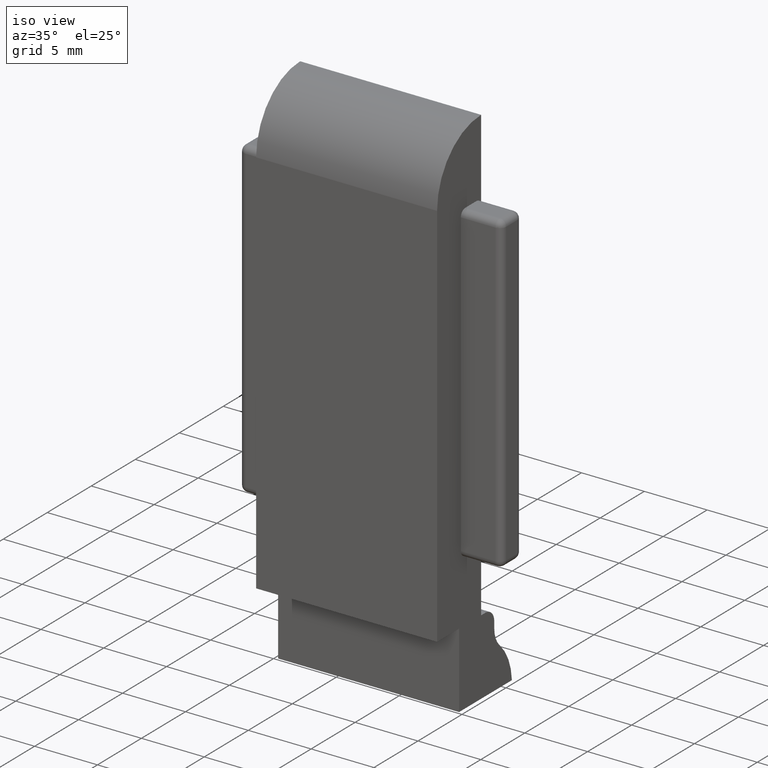
[diagram: clean part render]
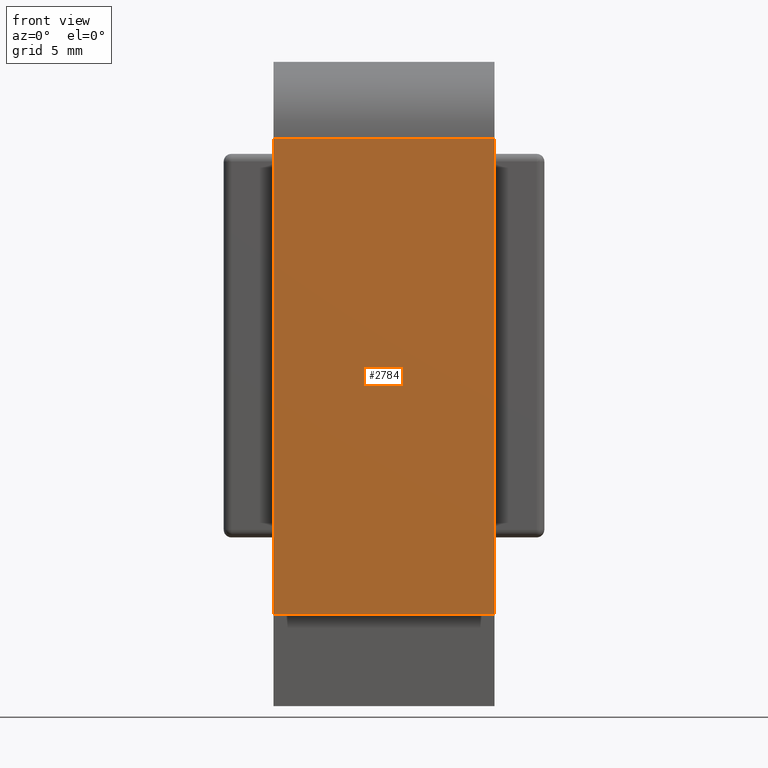
[diagram: tour spotlight — one face highlighted and labeled with its STEP entity id]
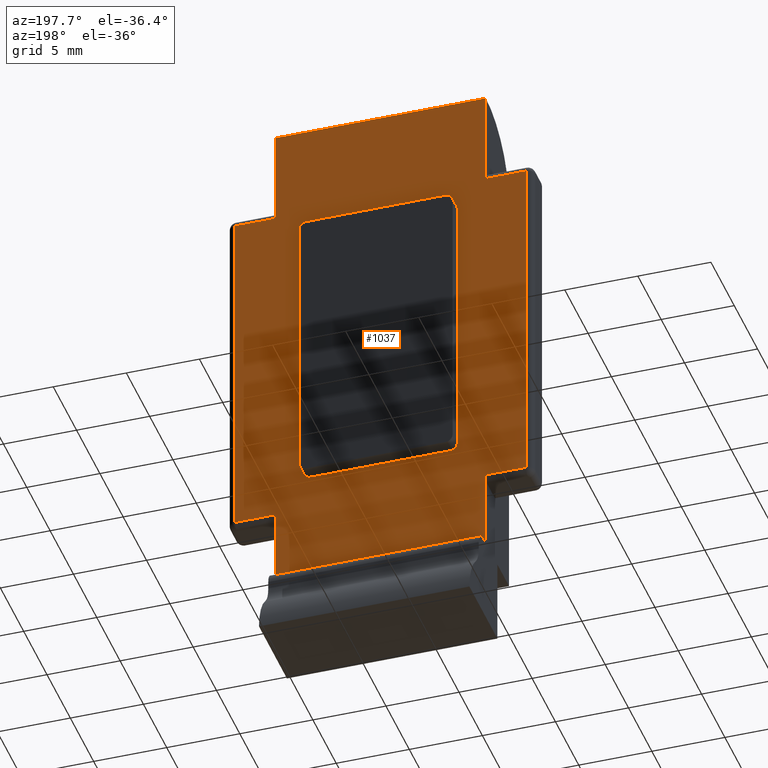
[diagram: tour spotlight — one face highlighted and labeled with its STEP entity id]
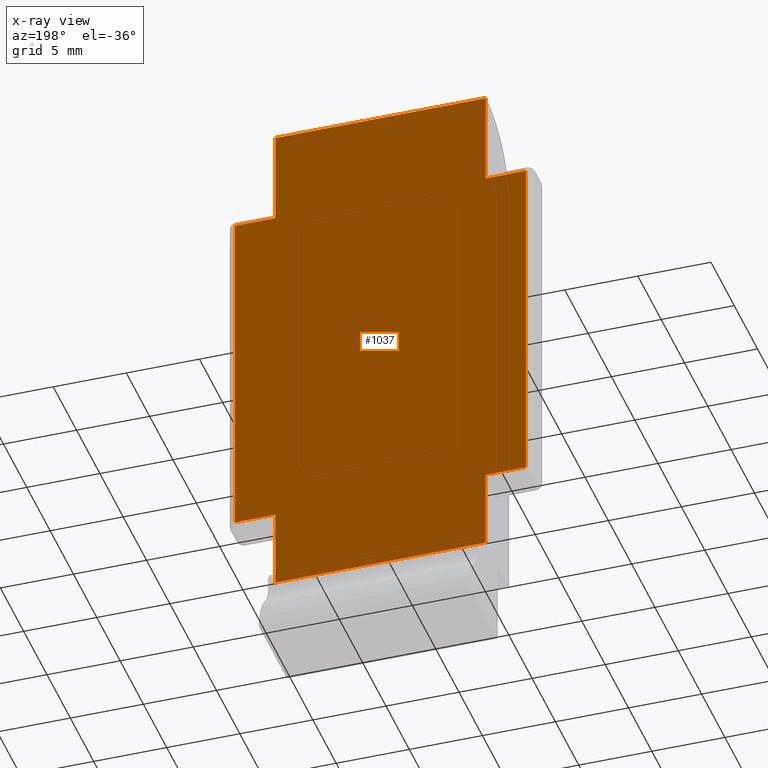
[diagram: x-ray of the same camera — body ghosted, this tour face saturated]
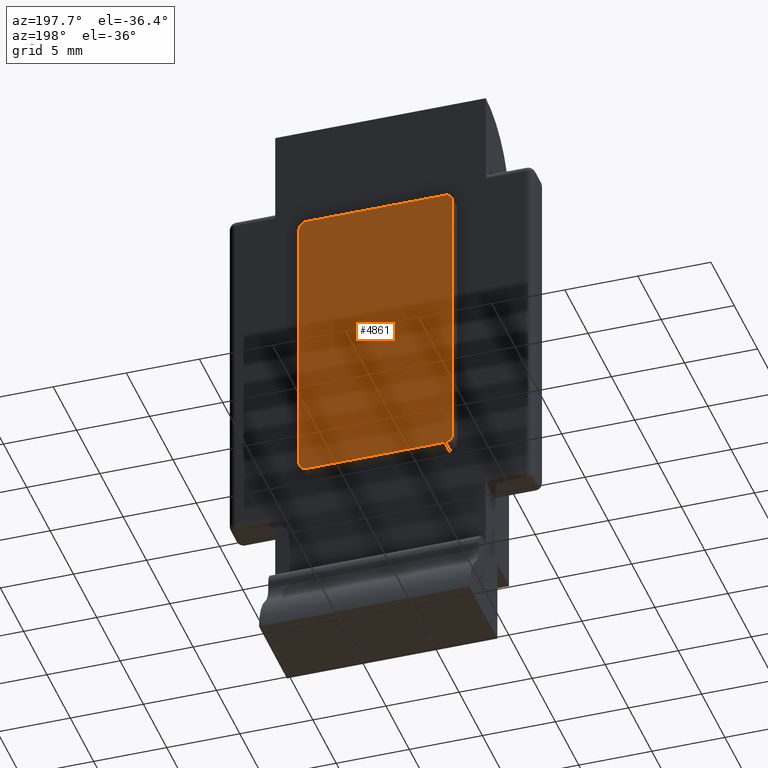
[diagram: tour spotlight — one face highlighted and labeled with its STEP entity id]
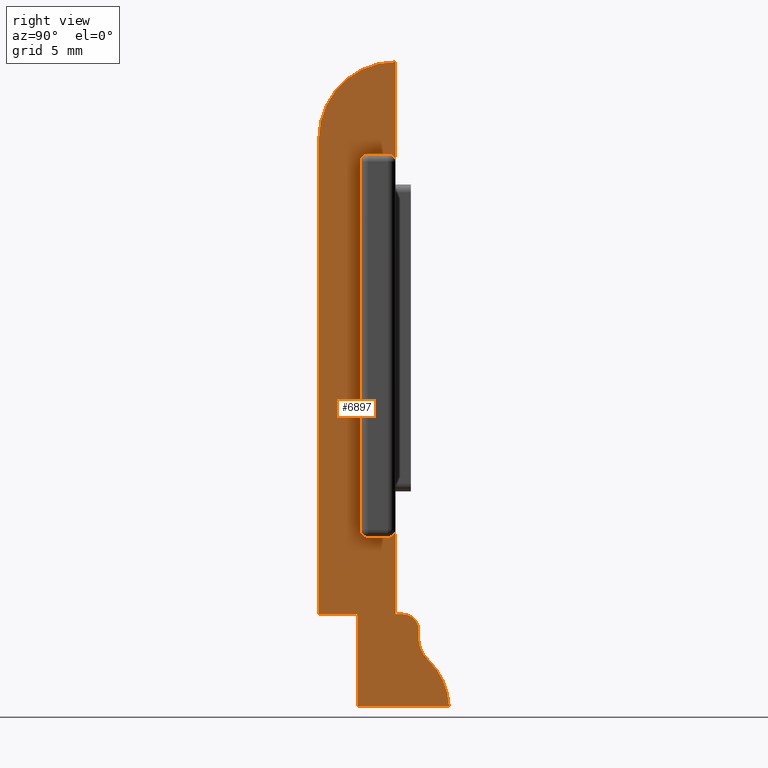
[diagram: tour spotlight — one face highlighted and labeled with its STEP entity id]
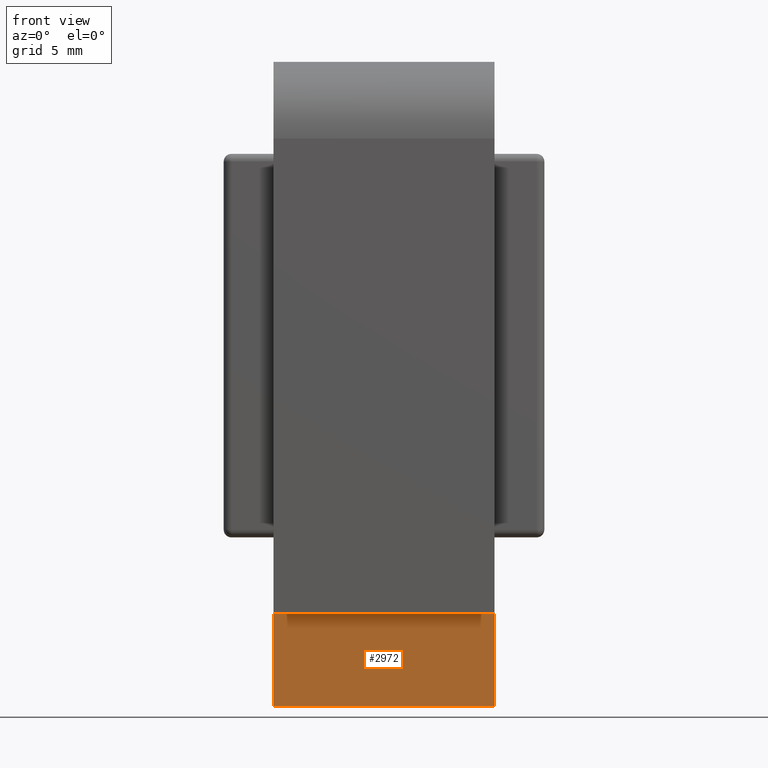
[diagram: tour spotlight — one face highlighted and labeled with its STEP entity id]
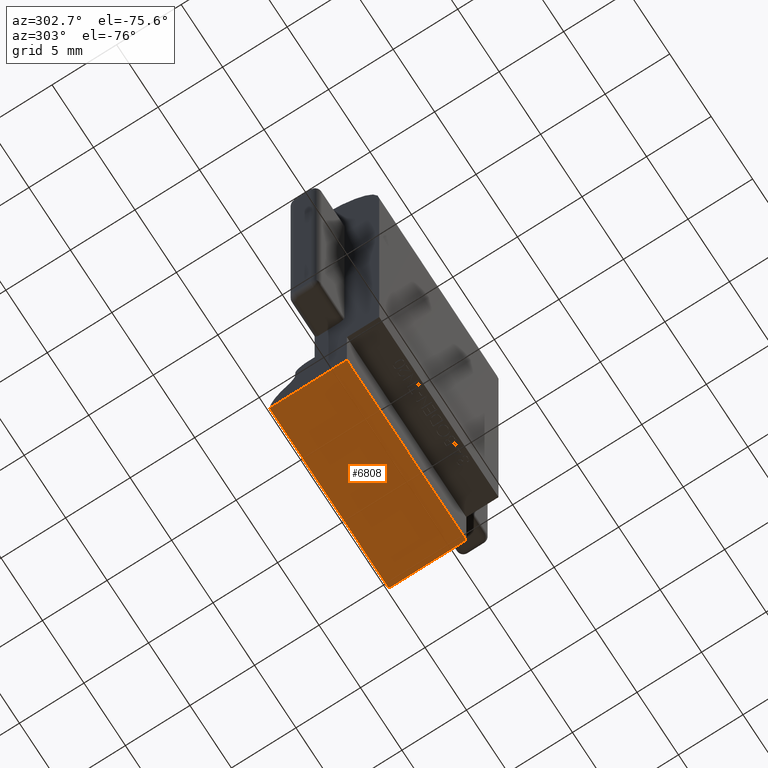
[diagram: tour spotlight — one face highlighted and labeled with its STEP entity id]
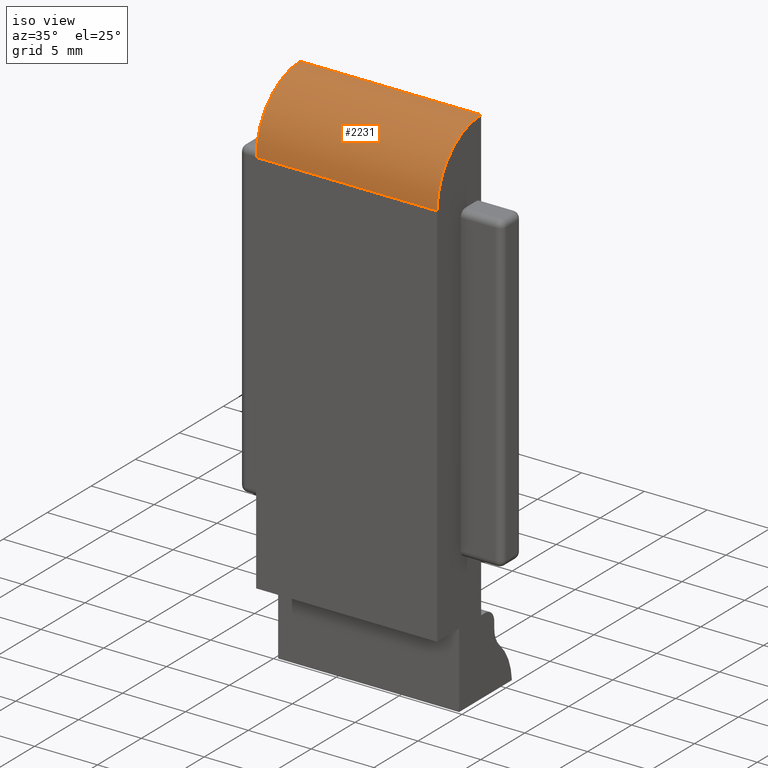
[diagram: tour spotlight — one face highlighted and labeled with its STEP entity id]
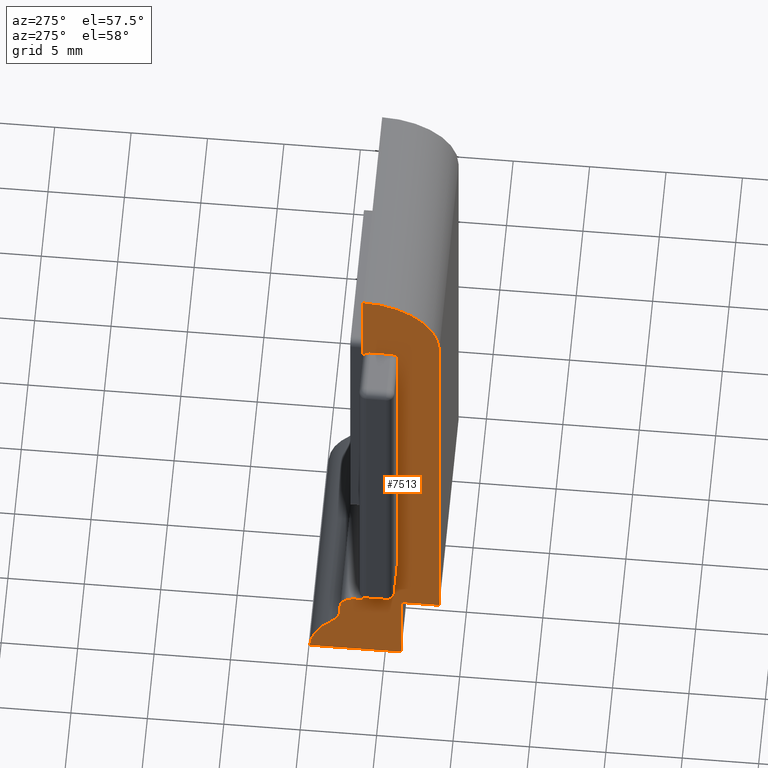
[diagram: tour spotlight — one face highlighted and labeled with its STEP entity id]
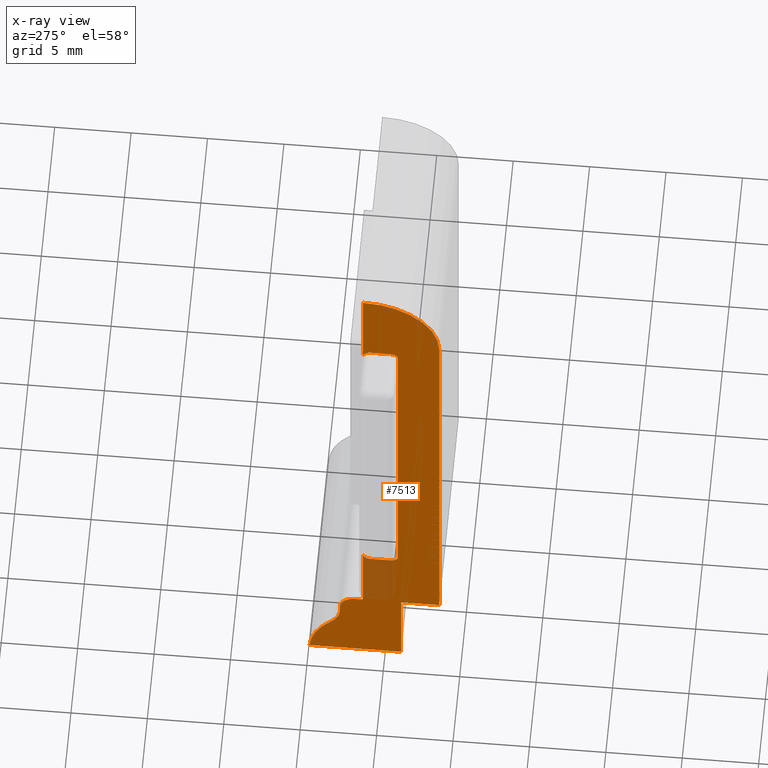
[diagram: x-ray of the same camera — body ghosted, this tour face saturated]
A machine part: a face-by-face anatomy tour. The part has 212 B-rep faces; the first image is the clean iso view, then the 8 largest visible faces are spotlighted one at a time (largest first), each with its STEP entity span.

Face 1 — front view, entity #2784. In plain terms, the highlighted planar face has unit normal (0, 1, 0).
Definition (entity closure, byte-faithful):
#141 = EDGE_CURVE ( 'NONE', #1060, #3666, #2911, .T. ) ;
#450 = EDGE_CURVE ( 'NONE', #2165, #1060, #7198, .T. ) ;
#1060 = VERTEX_POINT ( 'NONE', #4260 ) ;
#2114 = CARTESIAN_POINT ( 'NONE',  ( 0.0000000000000000000, -5.000000000000004400, 0.0000000000000000000 ) ) ;
#2165 = VERTEX_POINT ( 'NONE', #7008 ) ;
#2180 = VECTOR ( 'NONE', #7752, 1000.000000000000000 ) ;
#2286 = VECTOR ( 'NONE', #2686, 1000.000000000000000 ) ;
#2485 = VECTOR ( 'NONE', #4102, 1000.000000000000000 ) ;
#2528 = VECTOR ( 'NONE', #6272, 1000.000000000000000 ) ;
#2686 = DIRECTION ( 'NONE',  ( 0.0000000000000000000, 0.0000000000000000000, -1.000000000000000000 ) ) ;
#2772 = EDGE_CURVE ( 'NONE', #6245, #3666, #9351, .T. ) ;
#2784 = ADVANCED_FACE ( 'NONE', ( #7319 ), #3947, .F. ) ;
#2911 = LINE ( 'NONE', #8973, #2180 ) ;
#3173 = DIRECTION ( 'NONE',  ( -0.0000000000000000000, 1.000000000000000000, 0.0000000000000000000 ) ) ;
#3272 = CARTESIAN_POINT ( 'NONE',  ( 0.0000000000000000000, -5.000000000000004400, 30.99999999999999300 ) ) ;
#3666 = VERTEX_POINT ( 'NONE', #2114 ) ;
#3940 = EDGE_LOOP ( 'NONE', ( #7931, #4463, #7706, #9084 ) ) ;
#3947 = PLANE ( 'NONE',  #9876 ) ;
#4017 = DIRECTION ( 'NONE',  ( 0.0000000000000000000, -0.0000000000000000000, 1.000000000000000000 ) ) ;
#4102 = DIRECTION ( 'NONE',  ( -1.000000000000000000, -0.0000000000000000000, -0.0000000000000000000 ) ) ;
#4139 = CARTESIAN_POINT ( 'NONE',  ( 14.40000000000000000, -5.000000000000002700, 30.99999999999999300 ) ) ;
#4260 = CARTESIAN_POINT ( 'NONE',  ( 14.40000000000000000, -5.000000000000004400, 0.0000000000000000000 ) ) ;
#4463 = ORIENTED_EDGE ( 'NONE', *, *, #141, .F. ) ;
#4617 = EDGE_CURVE ( 'NONE', #2165, #6245, #7278, .T. ) ;
#6245 = VERTEX_POINT ( 'NONE', #7771 ) ;
#6272 = DIRECTION ( 'NONE',  ( 0.0000000000000000000, 0.0000000000000000000, -1.000000000000000000 ) ) ;
#7008 = CARTESIAN_POINT ( 'NONE',  ( 14.40000000000000000, -5.000000000000002700, 30.99999999999999300 ) ) ;
#7198 = LINE ( 'NONE', #7948, #2286 ) ;
#7278 = LINE ( 'NONE', #4139, #2485 ) ;
#7319 = FACE_OUTER_BOUND ( 'NONE', #3940, .T. ) ;
#7706 = ORIENTED_EDGE ( 'NONE', *, *, #450, .F. ) ;
#7752 = DIRECTION ( 'NONE',  ( -1.000000000000000000, -0.0000000000000000000, -0.0000000000000000000 ) ) ;
#7771 = CARTESIAN_POINT ( 'NONE',  ( 0.0000000000000000000, -5.000000000000002700, 30.99999999999999300 ) ) ;
#7931 = ORIENTED_EDGE ( 'NONE', *, *, #2772, .T. ) ;
#7948 = CARTESIAN_POINT ( 'NONE',  ( 14.40000000000000000, -5.000000000000004400, 30.99999999999999300 ) ) ;
#8973 = CARTESIAN_POINT ( 'NONE',  ( 14.40000000000000000, -5.000000000000004400, 0.0000000000000000000 ) ) ;
#9084 = ORIENTED_EDGE ( 'NONE', *, *, #4617, .T. ) ;
#9351 = LINE ( 'NONE', #3272, #2528 ) ;
#9374 = CARTESIAN_POINT ( 'NONE',  ( 14.40000000000000000, -5.000000000000004400, 30.99999999999999300 ) ) ;
#9876 = AXIS2_PLACEMENT_3D ( 'NONE', #9374, #3173, #4017 ) ;

Face 2 — auxiliary view, entity #1037. An x-ray twin of the same camera follows (body ghosted, this face saturated) — the face is partly hidden behind the body. In plain terms, the highlighted planar face has unit normal (0, -1, -0).
Definition (entity closure, byte-faithful):
#214 = ORIENTED_EDGE ( 'NONE', *, *, #7647, .T. ) ;
#257 = CARTESIAN_POINT ( 'NONE',  ( 17.14999999999999900, -6.505213034913026600E-016, 5.499999999999998200 ) ) ;
#286 = LINE ( 'NONE', #6440, #6040 ) ;
#641 = VECTOR ( 'NONE', #1742, 1000.000000000000000 ) ;
#711 = EDGE_LOOP ( 'NONE', ( #2545, #5575, #5744, #4779, #7068, #7147, #2842, #214, #2534, #2895, #5609, #5158 ) ) ;
#791 = EDGE_CURVE ( 'NONE', #7744, #7770, #1812, .T. ) ;
#875 = LINE ( 'NONE', #6339, #641 ) ;
#922 = CARTESIAN_POINT ( 'NONE',  ( 14.40000000000000000, -4.336808689942017700E-015, 36.00000000000000000 ) ) ;
#978 = CARTESIAN_POINT ( 'NONE',  ( 14.40000000000000000, -4.336808689942017700E-015, 36.00000000000000000 ) ) ;
#1037 = ADVANCED_FACE ( 'NONE', ( #9631 ), #2769, .F. ) ;
#1125 = VERTEX_POINT ( 'NONE', #5951 ) ;
#1129 = EDGE_CURVE ( 'NONE', #4273, #9597, #2794, .T. ) ;
#1144 = CARTESIAN_POINT ( 'NONE',  ( 14.40000000000000000, -4.336808689942017700E-015, 36.00000000000000000 ) ) ;
#1294 = VECTOR ( 'NONE', #6203, 1000.000000000000000 ) ;
#1476 = VECTOR ( 'NONE', #4395, 1000.000000000000000 ) ;
#1489 = VECTOR ( 'NONE', #4710, 1000.000000000000000 ) ;
#1532 = CARTESIAN_POINT ( 'NONE',  ( 14.40000000000000000, 0.0000000000000000000, 0.0000000000000000000 ) ) ;
#1634 = EDGE_CURVE ( 'NONE', #5099, #4111, #875, .T. ) ;
#1707 = CARTESIAN_POINT ( 'NONE',  ( -2.750000000000000900, -3.686287386450715100E-015, 30.00000000000000000 ) ) ;
#1742 = DIRECTION ( 'NONE',  ( -0.0000000000000000000, -1.224646799147353200E-016, 1.000000000000000000 ) ) ;
#1812 = LINE ( 'NONE', #6222, #9725 ) ;
#2128 = CARTESIAN_POINT ( 'NONE',  ( 0.0000000000000000000, -6.505213034913026600E-016, 5.499999999999998200 ) ) ;
#2312 = CARTESIAN_POINT ( 'NONE',  ( 14.40000000000000000, -4.336808689942017700E-015, 36.00000000000000000 ) ) ;
#2452 = CARTESIAN_POINT ( 'NONE',  ( 14.40000000000000000, -6.505213034913026600E-016, 5.499999999999998200 ) ) ;
#2458 = EDGE_CURVE ( 'NONE', #2689, #1125, #3152, .T. ) ;
#2462 = VECTOR ( 'NONE', #4936, 1000.000000000000000 ) ;
#2474 = VERTEX_POINT ( 'NONE', #6818 ) ;
#2534 = ORIENTED_EDGE ( 'NONE', *, *, #8322, .T. ) ;
#2545 = ORIENTED_EDGE ( 'NONE', *, *, #1634, .T. ) ;
#2663 = VECTOR ( 'NONE', #6845, 1000.000000000000000 ) ;
#2689 = VERTEX_POINT ( 'NONE', #3417 ) ;
#2769 = PLANE ( 'NONE',  #6798 ) ;
#2794 = LINE ( 'NONE', #9757, #1476 ) ;
#2842 = ORIENTED_EDGE ( 'NONE', *, *, #1129, .F. ) ;
#2895 = ORIENTED_EDGE ( 'NONE', *, *, #8244, .T. ) ;
#3099 = CARTESIAN_POINT ( 'NONE',  ( 14.40000000000000000, -3.686287386450715100E-015, 29.50000000000000000 ) ) ;
#3152 = LINE ( 'NONE', #2312, #2663 ) ;
#3218 = LINE ( 'NONE', #1532, #8094 ) ;
#3365 = CARTESIAN_POINT ( 'NONE',  ( 14.40000000000000000, -6.505213034913026600E-016, 5.499999999999998200 ) ) ;
#3417 = CARTESIAN_POINT ( 'NONE',  ( 14.40000000000000000, 0.0000000000000000000, 0.0000000000000000000 ) ) ;
#3602 = VERTEX_POINT ( 'NONE', #257 ) ;
#3607 = DIRECTION ( 'NONE',  ( -0.0000000000000000000, 1.224646799147353000E-016, -1.000000000000000000 ) ) ;
#3700 = LINE ( 'NONE', #1707, #5126 ) ;
#3705 = VECTOR ( 'NONE', #8839, 1000.000000000000000 ) ;
#3938 = CARTESIAN_POINT ( 'NONE',  ( 0.0000000000000000000, -4.336808689942017700E-015, 36.00000000000000000 ) ) ;
#4103 = DIRECTION ( 'NONE',  ( -0.0000000000000000000, -1.224646799147353000E-016, 1.000000000000000000 ) ) ;
#4111 = VERTEX_POINT ( 'NONE', #2128 ) ;
#4273 = VERTEX_POINT ( 'NONE', #4587 ) ;
#4395 = DIRECTION ( 'NONE',  ( -0.0000000000000000000, -1.224646799147353200E-016, 1.000000000000000000 ) ) ;
#4587 = CARTESIAN_POINT ( 'NONE',  ( 14.40000000000000000, -3.686287386450715100E-015, 29.50000000000000000 ) ) ;
#4710 = DIRECTION ( 'NONE',  ( -1.000000000000000000, -0.0000000000000000000, -0.0000000000000000000 ) ) ;
#4779 = ORIENTED_EDGE ( 'NONE', *, *, #6004, .T. ) ;
#4936 = DIRECTION ( 'NONE',  ( -1.000000000000000000, 0.0000000000000000000, 0.0000000000000000000 ) ) ;
#5099 = VERTEX_POINT ( 'NONE', #9566 ) ;
#5126 = VECTOR ( 'NONE', #4103, 1000.000000000000000 ) ;
#5158 = ORIENTED_EDGE ( 'NONE', *, *, #8620, .T. ) ;
#5575 = ORIENTED_EDGE ( 'NONE', *, *, #6987, .T. ) ;
#5609 = ORIENTED_EDGE ( 'NONE', *, *, #2458, .F. ) ;
#5744 = ORIENTED_EDGE ( 'NONE', *, *, #6034, .T. ) ;
#5841 = LINE ( 'NONE', #3099, #1294 ) ;
#5951 = CARTESIAN_POINT ( 'NONE',  ( 14.40000000000000000, -6.505213034913026600E-016, 5.499999999999998200 ) ) ;
#6004 = EDGE_CURVE ( 'NONE', #7296, #7744, #5841, .T. ) ;
#6034 = EDGE_CURVE ( 'NONE', #2474, #7296, #3700, .T. ) ;
#6040 = VECTOR ( 'NONE', #3607, 1000.000000000000000 ) ;
#6105 = CARTESIAN_POINT ( 'NONE',  ( 17.14999999999999900, -3.686287386450715100E-015, 29.50000000000000000 ) ) ;
#6163 = DIRECTION ( 'NONE',  ( -1.000000000000000000, -0.0000000000000000000, -0.0000000000000000000 ) ) ;
#6203 = DIRECTION ( 'NONE',  ( 1.000000000000000000, 0.0000000000000000000, 0.0000000000000000000 ) ) ;
#6222 = CARTESIAN_POINT ( 'NONE',  ( 0.0000000000000000000, -4.336808689942017700E-015, 36.00000000000000000 ) ) ;
#6339 = CARTESIAN_POINT ( 'NONE',  ( 0.0000000000000000000, -4.336808689942017700E-015, 36.00000000000000000 ) ) ;
#6440 = CARTESIAN_POINT ( 'NONE',  ( 17.14999999999999900, -4.336808689942017700E-015, 36.00000000000000000 ) ) ;
#6625 = DIRECTION ( 'NONE',  ( 0.0000000000000000000, -1.000000000000000000, -1.224646799147353000E-016 ) ) ;
#6798 = AXIS2_PLACEMENT_3D ( 'NONE', #1144, #6625, #7999 ) ;
#6818 = CARTESIAN_POINT ( 'NONE',  ( -2.750000000000000900, -6.505213034913026600E-016, 5.499999999999998200 ) ) ;
#6845 = DIRECTION ( 'NONE',  ( -0.0000000000000000000, -1.224646799147353200E-016, 1.000000000000000000 ) ) ;
#6987 = EDGE_CURVE ( 'NONE', #4111, #2474, #7479, .T. ) ;
#7068 = ORIENTED_EDGE ( 'NONE', *, *, #791, .T. ) ;
#7147 = ORIENTED_EDGE ( 'NONE', *, *, #9064, .F. ) ;
#7195 = VERTEX_POINT ( 'NONE', #6105 ) ;
#7296 = VERTEX_POINT ( 'NONE', #9504 ) ;
#7433 = CARTESIAN_POINT ( 'NONE',  ( 14.40000000000000000, -3.686287386450715100E-015, 29.50000000000000000 ) ) ;
#7479 = LINE ( 'NONE', #2452, #3705 ) ;
#7647 = EDGE_CURVE ( 'NONE', #4273, #7195, #8448, .T. ) ;
#7744 = VERTEX_POINT ( 'NONE', #9396 ) ;
#7770 = VERTEX_POINT ( 'NONE', #3938 ) ;
#7999 = DIRECTION ( 'NONE',  ( 0.0000000000000000000, 1.224646799147353000E-016, -1.000000000000000000 ) ) ;
#8094 = VECTOR ( 'NONE', #6163, 1000.000000000000000 ) ;
#8244 = EDGE_CURVE ( 'NONE', #3602, #1125, #9046, .T. ) ;
#8310 = DIRECTION ( 'NONE',  ( 1.000000000000000000, -0.0000000000000000000, -0.0000000000000000000 ) ) ;
#8322 = EDGE_CURVE ( 'NONE', #7195, #3602, #286, .T. ) ;
#8448 = LINE ( 'NONE', #7433, #9898 ) ;
#8620 = EDGE_CURVE ( 'NONE', #2689, #5099, #3218, .T. ) ;
#8839 = DIRECTION ( 'NONE',  ( -1.000000000000000000, -0.0000000000000000000, -0.0000000000000000000 ) ) ;
#9046 = LINE ( 'NONE', #3365, #2462 ) ;
#9064 = EDGE_CURVE ( 'NONE', #9597, #7770, #9756, .T. ) ;
#9281 = DIRECTION ( 'NONE',  ( -0.0000000000000000000, -1.224646799147353200E-016, 1.000000000000000000 ) ) ;
#9396 = CARTESIAN_POINT ( 'NONE',  ( 0.0000000000000000000, -3.686287386450715100E-015, 29.50000000000000000 ) ) ;
#9504 = CARTESIAN_POINT ( 'NONE',  ( -2.750000000000000900, -3.686287386450715100E-015, 29.50000000000000000 ) ) ;
#9566 = CARTESIAN_POINT ( 'NONE',  ( 0.0000000000000000000, 0.0000000000000000000, 0.0000000000000000000 ) ) ;
#9597 = VERTEX_POINT ( 'NONE', #922 ) ;
#9631 = FACE_OUTER_BOUND ( 'NONE', #711, .T. ) ;
#9725 = VECTOR ( 'NONE', #9281, 1000.000000000000000 ) ;
#9756 = LINE ( 'NONE', #978, #1489 ) ;
#9757 = CARTESIAN_POINT ( 'NONE',  ( 14.40000000000000000, -4.336808689942017700E-015, 36.00000000000000000 ) ) ;
#9898 = VECTOR ( 'NONE', #8310, 1000.000000000000000 ) ;

Face 3 — auxiliary view, entity #4861. In plain terms, the highlighted planar face has unit normal (0, -1, -0).
Definition (entity closure, byte-faithful):
#375 = ORIENTED_EDGE ( 'NONE', *, *, #6732, .T. ) ;
#552 = CARTESIAN_POINT ( 'NONE',  ( 0.5000000000000004400, 1.000000000000102100, -10.00000000000000000 ) ) ;
#841 = VECTOR ( 'NONE', #3963, 1000.000000000000000 ) ;
#986 = DIRECTION ( 'NONE',  ( 1.454462294001164300E-030, 1.000000000000000000, 0.0000000000000000000 ) ) ;
#1224 = ORIENTED_EDGE ( 'NONE', *, *, #3505, .T. ) ;
#1362 = DIRECTION ( 'NONE',  ( 1.454462294001164300E-030, 1.000000000000000000, 0.0000000000000000000 ) ) ;
#1378 = VERTEX_POINT ( 'NONE', #1950 ) ;
#1950 = CARTESIAN_POINT ( 'NONE',  ( 19.50000000000162700, 1.000000000000051100, 0.0000000000000000000 ) ) ;
#2016 = ORIENTED_EDGE ( 'NONE', *, *, #8896, .T. ) ;
#2036 = VERTEX_POINT ( 'NONE', #9127 ) ;
#2107 = EDGE_CURVE ( 'NONE', #8286, #7519, #6950, .T. ) ;
#2513 = CARTESIAN_POINT ( 'NONE',  ( 0.0000000000000000000, 1.000000000000000200, -9.999999999999996400 ) ) ;
#2609 = CARTESIAN_POINT ( 'NONE',  ( 20.00000000000162700, 1.000000000000051100, -0.4999999999999995600 ) ) ;
#2656 = VERTEX_POINT ( 'NONE', #9307 ) ;
#2803 = DIRECTION ( 'NONE',  ( 0.0000000000000000000, 0.0000000000000000000, -1.000000000000000000 ) ) ;
#2827 = CIRCLE ( 'NONE', #5353, 0.5000000000000004400 ) ;
#2990 = CIRCLE ( 'NONE', #8593, 0.5000000000000000000 ) ;
#3274 = VERTEX_POINT ( 'NONE', #8995 ) ;
#3485 = VERTEX_POINT ( 'NONE', #6967 ) ;
#3505 = EDGE_CURVE ( 'NONE', #3274, #1378, #9163, .T. ) ;
#3681 = LINE ( 'NONE', #7939, #5220 ) ;
#3786 = CARTESIAN_POINT ( 'NONE',  ( 19.50000000000162700, 1.000000000000051100, -10.00000000000000000 ) ) ;
#3963 = DIRECTION ( 'NONE',  ( 1.000000000000000000, -1.454462294001164300E-030, 0.0000000000000000000 ) ) ;
#4052 = EDGE_CURVE ( 'NONE', #7519, #3274, #2990, .T. ) ;
#4359 = VECTOR ( 'NONE', #5328, 1000.000000000000000 ) ;
#4563 = ORIENTED_EDGE ( 'NONE', *, *, #5883, .T. ) ;
#4861 = ADVANCED_FACE ( 'NONE', ( #6095 ), #9905, .F. ) ;
#4884 = CIRCLE ( 'NONE', #6116, 0.5000000000000004400 ) ;
#5220 = VECTOR ( 'NONE', #7248, 1000.000000000000000 ) ;
#5230 = DIRECTION ( 'NONE',  ( 0.0000000000000000000, 0.0000000000000000000, -1.000000000000000000 ) ) ;
#5294 = CARTESIAN_POINT ( 'NONE',  ( 0.0000000000000000000, 1.000000000000000200, 0.0000000000000000000 ) ) ;
#5328 = DIRECTION ( 'NONE',  ( 0.0000000000000000000, 0.0000000000000000000, 1.000000000000000000 ) ) ;
#5353 = AXIS2_PLACEMENT_3D ( 'NONE', #3786, #8100, #7526 ) ;
#5883 = EDGE_CURVE ( 'NONE', #3485, #8286, #4884, .T. ) ;
#6095 = FACE_OUTER_BOUND ( 'NONE', #9134, .T. ) ;
#6116 = AXIS2_PLACEMENT_3D ( 'NONE', #552, #1362, #9069 ) ;
#6198 = CIRCLE ( 'NONE', #8472, 0.5000000000000000000 ) ;
#6465 = CARTESIAN_POINT ( 'NONE',  ( 0.0000000000000000000, 1.000000000000000200, -10.50000000000000000 ) ) ;
#6499 = ORIENTED_EDGE ( 'NONE', *, *, #7897, .T. ) ;
#6732 = EDGE_CURVE ( 'NONE', #2656, #2036, #2827, .T. ) ;
#6776 = VECTOR ( 'NONE', #7910, 1000.000000000000000 ) ;
#6785 = ORIENTED_EDGE ( 'NONE', *, *, #2107, .T. ) ;
#6883 = EDGE_CURVE ( 'NONE', #1378, #7875, #6198, .T. ) ;
#6950 = LINE ( 'NONE', #5294, #4359 ) ;
#6967 = CARTESIAN_POINT ( 'NONE',  ( 0.5000000000000004400, 1.000000000000102100, -10.50000000000000000 ) ) ;
#7209 = CARTESIAN_POINT ( 'NONE',  ( 0.0000000000000000000, 1.000000000000000200, -0.4999999999999995600 ) ) ;
#7248 = DIRECTION ( 'NONE',  ( 0.0000000000000000000, 0.0000000000000000000, -1.000000000000000000 ) ) ;
#7375 = CARTESIAN_POINT ( 'NONE',  ( 0.5000000000000004400, 1.000000000000102100, -0.5000000000000004400 ) ) ;
#7519 = VERTEX_POINT ( 'NONE', #7209 ) ;
#7526 = DIRECTION ( 'NONE',  ( 0.0000000000000000000, 0.0000000000000000000, -1.000000000000000000 ) ) ;
#7543 = DIRECTION ( 'NONE',  ( -1.454462294001164300E-030, -1.000000000000000000, -0.0000000000000000000 ) ) ;
#7791 = CARTESIAN_POINT ( 'NONE',  ( 19.50000000000162700, 1.000000000000051100, -0.5000000000000004400 ) ) ;
#7807 = CARTESIAN_POINT ( 'NONE',  ( 0.0000000000000000000, 1.000000000000000200, 0.0000000000000000000 ) ) ;
#7875 = VERTEX_POINT ( 'NONE', #2609 ) ;
#7890 = DIRECTION ( 'NONE',  ( 0.0000000000000000000, 0.0000000000000000000, -1.000000000000000000 ) ) ;
#7897 = EDGE_CURVE ( 'NONE', #2036, #3485, #9773, .T. ) ;
#7910 = DIRECTION ( 'NONE',  ( -1.000000000000000000, 1.454462294001164300E-030, 0.0000000000000000000 ) ) ;
#7939 = CARTESIAN_POINT ( 'NONE',  ( 20.00000000000162700, 1.000000000000051100, 0.0000000000000000000 ) ) ;
#8100 = DIRECTION ( 'NONE',  ( 1.454462294001164300E-030, 1.000000000000000000, 0.0000000000000000000 ) ) ;
#8223 = ORIENTED_EDGE ( 'NONE', *, *, #4052, .T. ) ;
#8286 = VERTEX_POINT ( 'NONE', #2513 ) ;
#8472 = AXIS2_PLACEMENT_3D ( 'NONE', #7791, #986, #7890 ) ;
#8593 = AXIS2_PLACEMENT_3D ( 'NONE', #7375, #9728, #2803 ) ;
#8660 = ORIENTED_EDGE ( 'NONE', *, *, #6883, .T. ) ;
#8896 = EDGE_CURVE ( 'NONE', #7875, #2656, #3681, .T. ) ;
#8995 = CARTESIAN_POINT ( 'NONE',  ( 0.5000000000000004400, 1.000000000000102100, 0.0000000000000000000 ) ) ;
#9036 = CARTESIAN_POINT ( 'NONE',  ( 0.0000000000000000000, 1.000000000000000200, 0.0000000000000000000 ) ) ;
#9069 = DIRECTION ( 'NONE',  ( 0.0000000000000000000, 0.0000000000000000000, -1.000000000000000000 ) ) ;
#9127 = CARTESIAN_POINT ( 'NONE',  ( 19.50000000000162700, 1.000000000000051100, -10.50000000000000000 ) ) ;
#9134 = EDGE_LOOP ( 'NONE', ( #6499, #4563, #6785, #8223, #1224, #8660, #2016, #375 ) ) ;
#9163 = LINE ( 'NONE', #7807, #841 ) ;
#9307 = CARTESIAN_POINT ( 'NONE',  ( 20.00000000000162700, 1.000000000000051100, -9.999999999999996400 ) ) ;
#9569 = AXIS2_PLACEMENT_3D ( 'NONE', #9036, #7543, #5230 ) ;
#9728 = DIRECTION ( 'NONE',  ( 1.454462294001164300E-030, 1.000000000000000000, 0.0000000000000000000 ) ) ;
#9773 = LINE ( 'NONE', #6465, #6776 ) ;
#9905 = PLANE ( 'NONE',  #9569 ) ;

Face 4 — right view, entity #6897. In plain terms, the highlighted planar face has unit normal (1, 0, 0).
Definition (entity closure, byte-faithful):
#90 = VERTEX_POINT ( 'NONE', #480 ) ;
#142 = ORIENTED_EDGE ( 'NONE', *, *, #3339, .T. ) ;
#143 = CARTESIAN_POINT ( 'NONE',  ( 14.40000000000000000, 0.0000000000000000000, 30.99999999999999300 ) ) ;
#231 = EDGE_CURVE ( 'NONE', #9597, #2165, #3041, .T. ) ;
#307 = LINE ( 'NONE', #966, #1154 ) ;
#425 = ORIENTED_EDGE ( 'NONE', *, *, #7993, .T. ) ;
#450 = EDGE_CURVE ( 'NONE', #2165, #1060, #7198, .T. ) ;
#480 = CARTESIAN_POINT ( 'NONE',  ( 14.40000000000000000, 1.499999999999995300, -1.000000000000000900 ) ) ;
#575 = CARTESIAN_POINT ( 'NONE',  ( 14.40000000000000000, -1.799999999999996900, 5.499999999999998200 ) ) ;
#620 = ORIENTED_EDGE ( 'NONE', *, *, #8047, .T. ) ;
#631 = DIRECTION ( 'NONE',  ( 0.0000000000000000000, 0.0000000000000000000, -1.000000000000000000 ) ) ;
#738 = CIRCLE ( 'NONE', #1988, 1.000000000000000000 ) ;
#744 = CARTESIAN_POINT ( 'NONE',  ( 14.40000000000000000, 0.0000000000000000000, 30.99999999999999300 ) ) ;
#922 = CARTESIAN_POINT ( 'NONE',  ( 14.40000000000000000, -4.336808689942017700E-015, 36.00000000000000000 ) ) ;
#966 = CARTESIAN_POINT ( 'NONE',  ( 14.40000000000000000, -2.299999999999996700, 4.999999999999997300 ) ) ;
#992 = DIRECTION ( 'NONE',  ( -1.000000000000000000, -0.0000000000000000000, 0.0000000000000000000 ) ) ;
#1021 = ORIENTED_EDGE ( 'NONE', *, *, #1078, .T. ) ;
#1054 = FACE_OUTER_BOUND ( 'NONE', #1557, .T. ) ;
#1060 = VERTEX_POINT ( 'NONE', #4260 ) ;
#1078 = EDGE_CURVE ( 'NONE', #4817, #8502, #4841, .T. ) ;
#1096 = CARTESIAN_POINT ( 'NONE',  ( 14.40000000000000000, 1.499999999999995300, 0.0000000000000000000 ) ) ;
#1119 = CARTESIAN_POINT ( 'NONE',  ( 14.40000000000000000, -1.799999999999996900, 30.00000000000000000 ) ) ;
#1125 = VERTEX_POINT ( 'NONE', #5951 ) ;
#1129 = EDGE_CURVE ( 'NONE', #4273, #9597, #2794, .T. ) ;
#1154 = VECTOR ( 'NONE', #9393, 1000.000000000000000 ) ;
#1215 = DIRECTION ( 'NONE',  ( 0.0000000000000000000, 0.0000000000000000000, -1.000000000000000000 ) ) ;
#1267 = LINE ( 'NONE', #7146, #5696 ) ;
#1329 = EDGE_CURVE ( 'NONE', #3242, #2689, #9372, .T. ) ;
#1344 = EDGE_CURVE ( 'NONE', #5628, #7344, #8531, .T. ) ;
#1371 = VECTOR ( 'NONE', #4152, 1000.000000000000000 ) ;
#1476 = VECTOR ( 'NONE', #4395, 1000.000000000000000 ) ;
#1481 = ORIENTED_EDGE ( 'NONE', *, *, #4517, .T. ) ;
#1513 = CARTESIAN_POINT ( 'NONE',  ( 14.40000000000000000, 3.499999999999996000, -5.999999999999998200 ) ) ;
#1557 = EDGE_LOOP ( 'NONE', ( #425, #3118, #6737, #4601, #3419, #6563, #5741, #5773, #1481, #4874, #620, #9517, #8921, #2883, #4020, #1021, #9692, #5670, #142 ) ) ;
#1608 = DIRECTION ( 'NONE',  ( 1.000000000000000000, 0.0000000000000000000, 0.0000000000000000000 ) ) ;
#1733 = CARTESIAN_POINT ( 'NONE',  ( 14.40000000000000000, 1.499999999999995300, -1.519743943650807300 ) ) ;
#1788 = VERTEX_POINT ( 'NONE', #8057 ) ;
#1807 = AXIS2_PLACEMENT_3D ( 'NONE', #7239, #992, #7961 ) ;
#1978 = VECTOR ( 'NONE', #6596, 1000.000000000000000 ) ;
#1988 = AXIS2_PLACEMENT_3D ( 'NONE', #6848, #4626, #9082 ) ;
#2122 = AXIS2_PLACEMENT_3D ( 'NONE', #4660, #7638, #4564 ) ;
#2163 = CARTESIAN_POINT ( 'NONE',  ( 14.40000000000000000, -1.799999999999996900, 4.999999999999997300 ) ) ;
#2165 = VERTEX_POINT ( 'NONE', #7008 ) ;
#2188 = VECTOR ( 'NONE', #6480, 1000.000000000000000 ) ;
#2232 = EDGE_CURVE ( 'NONE', #1060, #4817, #8155, .T. ) ;
#2286 = VECTOR ( 'NONE', #2686, 1000.000000000000000 ) ;
#2312 = CARTESIAN_POINT ( 'NONE',  ( 14.40000000000000000, -4.336808689942017700E-015, 36.00000000000000000 ) ) ;
#2355 = CARTESIAN_POINT ( 'NONE',  ( 14.40000000000000000, -2.500000000000004400, -5.999999999999998200 ) ) ;
#2458 = EDGE_CURVE ( 'NONE', #2689, #1125, #3152, .T. ) ;
#2483 = PLANE ( 'NONE',  #8606 ) ;
#2491 = CARTESIAN_POINT ( 'NONE',  ( 14.40000000000000000, -0.5000000000000007800, 5.499999999999998200 ) ) ;
#2663 = VECTOR ( 'NONE', #6845, 1000.000000000000000 ) ;
#2686 = DIRECTION ( 'NONE',  ( 0.0000000000000000000, 0.0000000000000000000, -1.000000000000000000 ) ) ;
#2689 = VERTEX_POINT ( 'NONE', #3417 ) ;
#2794 = LINE ( 'NONE', #9757, #1476 ) ;
#2834 = CARTESIAN_POINT ( 'NONE',  ( 14.40000000000000000, -2.500000000000004400, 0.0000000000000000000 ) ) ;
#2883 = ORIENTED_EDGE ( 'NONE', *, *, #450, .T. ) ;
#2918 = CARTESIAN_POINT ( 'NONE',  ( 14.40000000000000000, -0.5000000000000007800, 4.999999999999997300 ) ) ;
#2937 = EDGE_CURVE ( 'NONE', #90, #3242, #738, .T. ) ;
#2953 = CIRCLE ( 'NONE', #3830, 0.5000000000000004400 ) ;
#3029 = EDGE_CURVE ( 'NONE', #1125, #8479, #4933, .T. ) ;
#3031 = AXIS2_PLACEMENT_3D ( 'NONE', #2491, #4027, #6995 ) ;
#3041 = CIRCLE ( 'NONE', #3475, 5.000000000000004400 ) ;
#3118 = ORIENTED_EDGE ( 'NONE', *, *, #2937, .T. ) ;
#3152 = LINE ( 'NONE', #2312, #2663 ) ;
#3242 = VERTEX_POINT ( 'NONE', #7445 ) ;
#3305 = DIRECTION ( 'NONE',  ( 0.0000000000000000000, 0.0000000000000000000, -1.000000000000000000 ) ) ;
#3339 = EDGE_CURVE ( 'NONE', #8885, #8866, #9464, .T. ) ;
#3375 = CARTESIAN_POINT ( 'NONE',  ( 14.40000000000000000, -2.299999999999996700, 30.00000000000000000 ) ) ;
#3417 = CARTESIAN_POINT ( 'NONE',  ( 14.40000000000000000, 0.0000000000000000000, 0.0000000000000000000 ) ) ;
#3419 = ORIENTED_EDGE ( 'NONE', *, *, #3029, .T. ) ;
#3475 = AXIS2_PLACEMENT_3D ( 'NONE', #744, #1608, #4609 ) ;
#3714 = CARTESIAN_POINT ( 'NONE',  ( 14.40000000000000000, -2.500000000000004400, 0.0000000000000000000 ) ) ;
#3748 = DIRECTION ( 'NONE',  ( 0.0000000000000000000, 0.0000000000000000000, -1.000000000000000000 ) ) ;
#3830 = AXIS2_PLACEMENT_3D ( 'NONE', #4297, #7383, #1215 ) ;
#3892 = AXIS2_PLACEMENT_3D ( 'NONE', #575, #7447, #8187 ) ;
#4020 = ORIENTED_EDGE ( 'NONE', *, *, #2232, .T. ) ;
#4027 = DIRECTION ( 'NONE',  ( -1.000000000000000000, -0.0000000000000000000, -0.0000000000000000000 ) ) ;
#4152 = DIRECTION ( 'NONE',  ( 0.0000000000000000000, -1.000000000000000000, 0.0000000000000000000 ) ) ;
#4260 = CARTESIAN_POINT ( 'NONE',  ( 14.40000000000000000, -5.000000000000004400, 0.0000000000000000000 ) ) ;
#4273 = VERTEX_POINT ( 'NONE', #4587 ) ;
#4297 = CARTESIAN_POINT ( 'NONE',  ( 14.40000000000000000, -0.5000000000000034400, 29.50000000000000000 ) ) ;
#4395 = DIRECTION ( 'NONE',  ( -0.0000000000000000000, -1.224646799147353200E-016, 1.000000000000000000 ) ) ;
#4508 = DIRECTION ( 'NONE',  ( -1.000000000000000000, -0.0000000000000000000, -0.0000000000000000000 ) ) ;
#4517 = EDGE_CURVE ( 'NONE', #1788, #7344, #8721, .T. ) ;
#4532 = CARTESIAN_POINT ( 'NONE',  ( 14.40000000000000000, -2.500000000000004400, -5.999999999999998200 ) ) ;
#4564 = DIRECTION ( 'NONE',  ( 0.0000000000000000000, 0.0000000000000000000, -1.000000000000000000 ) ) ;
#4587 = CARTESIAN_POINT ( 'NONE',  ( 14.40000000000000000, -3.686287386450715100E-015, 29.50000000000000000 ) ) ;
#4601 = ORIENTED_EDGE ( 'NONE', *, *, #2458, .T. ) ;
#4602 = VECTOR ( 'NONE', #631, 1000.000000000000000 ) ;
#4609 = DIRECTION ( 'NONE',  ( 0.0000000000000000000, 0.0000000000000000000, -1.000000000000000000 ) ) ;
#4626 = DIRECTION ( 'NONE',  ( 1.000000000000000000, 0.0000000000000000000, 0.0000000000000000000 ) ) ;
#4660 = CARTESIAN_POINT ( 'NONE',  ( 14.40000000000000000, 3.499999999999995100, -1.519743943650807300 ) ) ;
#4817 = VERTEX_POINT ( 'NONE', #3714 ) ;
#4841 = LINE ( 'NONE', #2834, #4602 ) ;
#4874 = ORIENTED_EDGE ( 'NONE', *, *, #1344, .F. ) ;
#4933 = CIRCLE ( 'NONE', #3031, 0.5000000000000004400 ) ;
#4992 = LINE ( 'NONE', #8858, #1978 ) ;
#5024 = DIRECTION ( 'NONE',  ( -0.0000000000000000000, 1.000000000000000000, -0.0000000000000000000 ) ) ;
#5026 = CARTESIAN_POINT ( 'NONE',  ( 14.40000000000000000, -5.000000000000004400, 0.0000000000000000000 ) ) ;
#5608 = EDGE_CURVE ( 'NONE', #8885, #6859, #8456, .T. ) ;
#5625 = CARTESIAN_POINT ( 'NONE',  ( 14.40000000000000000, 2.116967167152068500, -2.964465433511271500 ) ) ;
#5628 = VERTEX_POINT ( 'NONE', #9522 ) ;
#5660 = VERTEX_POINT ( 'NONE', #8746 ) ;
#5670 = ORIENTED_EDGE ( 'NONE', *, *, #5608, .F. ) ;
#5696 = VECTOR ( 'NONE', #5024, 1000.000000000000000 ) ;
#5741 = ORIENTED_EDGE ( 'NONE', *, *, #6118, .T. ) ;
#5773 = ORIENTED_EDGE ( 'NONE', *, *, #8834, .F. ) ;
#5951 = CARTESIAN_POINT ( 'NONE',  ( 14.40000000000000000, -6.505213034913026600E-016, 5.499999999999998200 ) ) ;
#6008 = CARTESIAN_POINT ( 'NONE',  ( 14.40000000000000000, -1.799999999999996900, 29.50000000000000000 ) ) ;
#6118 = EDGE_CURVE ( 'NONE', #8105, #5660, #6678, .T. ) ;
#6141 = VECTOR ( 'NONE', #8074, 1000.000000000000000 ) ;
#6343 = DIRECTION ( 'NONE',  ( 1.000000000000000000, 0.0000000000000000000, 0.0000000000000000000 ) ) ;
#6480 = DIRECTION ( 'NONE',  ( -0.0000000000000000000, -1.000000000000000000, -0.0000000000000000000 ) ) ;
#6563 = ORIENTED_EDGE ( 'NONE', *, *, #8953, .F. ) ;
#6596 = DIRECTION ( 'NONE',  ( 0.0000000000000000000, 0.0000000000000000000, 1.000000000000000000 ) ) ;
#6649 = LINE ( 'NONE', #2355, #8182 ) ;
#6678 = CIRCLE ( 'NONE', #3892, 0.5000000000000004400 ) ;
#6737 = ORIENTED_EDGE ( 'NONE', *, *, #1329, .T. ) ;
#6845 = DIRECTION ( 'NONE',  ( -0.0000000000000000000, -1.224646799147353200E-016, 1.000000000000000000 ) ) ;
#6848 = CARTESIAN_POINT ( 'NONE',  ( 14.40000000000000000, 0.4999999999999952300, -1.000000000000000900 ) ) ;
#6859 = VERTEX_POINT ( 'NONE', #1513 ) ;
#6897 = ADVANCED_FACE ( 'NONE', ( #1054 ), #2483, .T. ) ;
#6995 = DIRECTION ( 'NONE',  ( 0.0000000000000000000, 0.0000000000000000000, -1.000000000000000000 ) ) ;
#7008 = CARTESIAN_POINT ( 'NONE',  ( 14.40000000000000000, -5.000000000000002700, 30.99999999999999300 ) ) ;
#7146 = CARTESIAN_POINT ( 'NONE',  ( 14.40000000000000000, 3.035766082959412400E-015, 4.999999999999997300 ) ) ;
#7198 = LINE ( 'NONE', #7948, #2286 ) ;
#7239 = CARTESIAN_POINT ( 'NONE',  ( 14.40000000000000000, -0.9948567067557664300, -6.215088785697316700 ) ) ;
#7344 = VERTEX_POINT ( 'NONE', #1119 ) ;
#7383 = DIRECTION ( 'NONE',  ( -1.000000000000000000, -0.0000000000000000000, -0.0000000000000000000 ) ) ;
#7445 = CARTESIAN_POINT ( 'NONE',  ( 14.40000000000000000, 0.4999999999999952300, 0.0000000000000000000 ) ) ;
#7447 = DIRECTION ( 'NONE',  ( -1.000000000000000000, -0.0000000000000000000, -0.0000000000000000000 ) ) ;
#7638 = DIRECTION ( 'NONE',  ( -1.000000000000000000, -0.0000000000000000000, -0.0000000000000000000 ) ) ;
#7948 = CARTESIAN_POINT ( 'NONE',  ( 14.40000000000000000, -5.000000000000004400, 30.99999999999999300 ) ) ;
#7961 = DIRECTION ( 'NONE',  ( 0.0000000000000000000, 0.0000000000000000000, 1.000000000000000000 ) ) ;
#7993 = EDGE_CURVE ( 'NONE', #8866, #90, #4992, .T. ) ;
#8047 = EDGE_CURVE ( 'NONE', #5628, #4273, #2953, .T. ) ;
#8057 = CARTESIAN_POINT ( 'NONE',  ( 14.40000000000000000, -2.299999999999996700, 29.50000000000000000 ) ) ;
#8071 = AXIS2_PLACEMENT_3D ( 'NONE', #6008, #4508, #3748 ) ;
#8074 = DIRECTION ( 'NONE',  ( 0.0000000000000000000, 1.000000000000000000, 0.0000000000000000000 ) ) ;
#8105 = VERTEX_POINT ( 'NONE', #2163 ) ;
#8155 = LINE ( 'NONE', #5026, #6141 ) ;
#8182 = VECTOR ( 'NONE', #8478, 1000.000000000000000 ) ;
#8187 = DIRECTION ( 'NONE',  ( 0.0000000000000000000, 0.0000000000000000000, -1.000000000000000000 ) ) ;
#8456 = CIRCLE ( 'NONE', #1807, 4.500000000000000900 ) ;
#8478 = DIRECTION ( 'NONE',  ( 0.0000000000000000000, 1.000000000000000000, 0.0000000000000000000 ) ) ;
#8479 = VERTEX_POINT ( 'NONE', #2918 ) ;
#8502 = VERTEX_POINT ( 'NONE', #4532 ) ;
#8531 = LINE ( 'NONE', #3375, #2188 ) ;
#8606 = AXIS2_PLACEMENT_3D ( 'NONE', #143, #6343, #3305 ) ;
#8721 = CIRCLE ( 'NONE', #8071, 0.5000000000000004400 ) ;
#8746 = CARTESIAN_POINT ( 'NONE',  ( 14.40000000000000000, -2.299999999999996700, 5.499999999999998200 ) ) ;
#8834 = EDGE_CURVE ( 'NONE', #1788, #5660, #307, .T. ) ;
#8858 = CARTESIAN_POINT ( 'NONE',  ( 14.40000000000000000, 1.499999999999995300, -2.469999999999999800 ) ) ;
#8866 = VERTEX_POINT ( 'NONE', #1733 ) ;
#8885 = VERTEX_POINT ( 'NONE', #5625 ) ;
#8921 = ORIENTED_EDGE ( 'NONE', *, *, #231, .T. ) ;
#8953 = EDGE_CURVE ( 'NONE', #8105, #8479, #1267, .T. ) ;
#9082 = DIRECTION ( 'NONE',  ( 0.0000000000000000000, 0.0000000000000000000, -1.000000000000000000 ) ) ;
#9372 = LINE ( 'NONE', #1096, #1371 ) ;
#9393 = DIRECTION ( 'NONE',  ( -0.0000000000000000000, -0.0000000000000000000, -1.000000000000000000 ) ) ;
#9464 = CIRCLE ( 'NONE', #2122, 2.000000000000000000 ) ;
#9517 = ORIENTED_EDGE ( 'NONE', *, *, #1129, .T. ) ;
#9522 = CARTESIAN_POINT ( 'NONE',  ( 14.40000000000000000, -0.5000000000000034400, 30.00000000000000000 ) ) ;
#9597 = VERTEX_POINT ( 'NONE', #922 ) ;
#9634 = EDGE_CURVE ( 'NONE', #8502, #6859, #6649, .T. ) ;
#9692 = ORIENTED_EDGE ( 'NONE', *, *, #9634, .T. ) ;
#9757 = CARTESIAN_POINT ( 'NONE',  ( 14.40000000000000000, -4.336808689942017700E-015, 36.00000000000000000 ) ) ;

Face 5 — front view, entity #2972. In plain terms, the highlighted planar face has unit normal (0, -1, 0).
Definition (entity closure, byte-faithful):
#242 = FACE_OUTER_BOUND ( 'NONE', #7584, .T. ) ;
#453 = ORIENTED_EDGE ( 'NONE', *, *, #3550, .T. ) ;
#540 = ORIENTED_EDGE ( 'NONE', *, *, #6019, .F. ) ;
#631 = DIRECTION ( 'NONE',  ( 0.0000000000000000000, 0.0000000000000000000, -1.000000000000000000 ) ) ;
#1078 = EDGE_CURVE ( 'NONE', #4817, #8502, #4841, .T. ) ;
#1238 = VERTEX_POINT ( 'NONE', #4586 ) ;
#1554 = PLANE ( 'NONE',  #7616 ) ;
#1794 = LINE ( 'NONE', #2497, #7046 ) ;
#1967 = ORIENTED_EDGE ( 'NONE', *, *, #1078, .F. ) ;
#1999 = DIRECTION ( 'NONE',  ( 1.000000000000000000, 0.0000000000000000000, 0.0000000000000000000 ) ) ;
#2497 = CARTESIAN_POINT ( 'NONE',  ( 0.0000000000000000000, -2.500000000000004400, 0.0000000000000000000 ) ) ;
#2834 = CARTESIAN_POINT ( 'NONE',  ( 14.40000000000000000, -2.500000000000004400, 0.0000000000000000000 ) ) ;
#2972 = ADVANCED_FACE ( 'NONE', ( #242 ), #1554, .T. ) ;
#3550 = EDGE_CURVE ( 'NONE', #1238, #5485, #1794, .T. ) ;
#3714 = CARTESIAN_POINT ( 'NONE',  ( 14.40000000000000000, -2.500000000000004400, 0.0000000000000000000 ) ) ;
#4030 = LINE ( 'NONE', #4989, #9873 ) ;
#4132 = ORIENTED_EDGE ( 'NONE', *, *, #8996, .T. ) ;
#4532 = CARTESIAN_POINT ( 'NONE',  ( 14.40000000000000000, -2.500000000000004400, -5.999999999999998200 ) ) ;
#4586 = CARTESIAN_POINT ( 'NONE',  ( 0.0000000000000000000, -2.500000000000004400, 0.0000000000000000000 ) ) ;
#4602 = VECTOR ( 'NONE', #631, 1000.000000000000000 ) ;
#4817 = VERTEX_POINT ( 'NONE', #3714 ) ;
#4841 = LINE ( 'NONE', #2834, #4602 ) ;
#4989 = CARTESIAN_POINT ( 'NONE',  ( 0.0000000000000000000, -2.500000000000004400, -5.999999999999998200 ) ) ;
#5360 = VECTOR ( 'NONE', #5564, 1000.000000000000000 ) ;
#5485 = VERTEX_POINT ( 'NONE', #9240 ) ;
#5564 = DIRECTION ( 'NONE',  ( 1.000000000000000000, 0.0000000000000000000, 0.0000000000000000000 ) ) ;
#6019 = EDGE_CURVE ( 'NONE', #1238, #4817, #9050, .T. ) ;
#6821 = DIRECTION ( 'NONE',  ( 0.0000000000000000000, -0.0000000000000000000, -1.000000000000000000 ) ) ;
#7046 = VECTOR ( 'NONE', #8511, 1000.000000000000000 ) ;
#7082 = CARTESIAN_POINT ( 'NONE',  ( 0.0000000000000000000, -2.500000000000004400, 0.0000000000000000000 ) ) ;
#7584 = EDGE_LOOP ( 'NONE', ( #1967, #540, #453, #4132 ) ) ;
#7616 = AXIS2_PLACEMENT_3D ( 'NONE', #9859, #8387, #6821 ) ;
#8387 = DIRECTION ( 'NONE',  ( 0.0000000000000000000, -1.000000000000000000, 0.0000000000000000000 ) ) ;
#8502 = VERTEX_POINT ( 'NONE', #4532 ) ;
#8511 = DIRECTION ( 'NONE',  ( 0.0000000000000000000, 0.0000000000000000000, -1.000000000000000000 ) ) ;
#8996 = EDGE_CURVE ( 'NONE', #5485, #8502, #4030, .T. ) ;
#9050 = LINE ( 'NONE', #7082, #5360 ) ;
#9240 = CARTESIAN_POINT ( 'NONE',  ( 0.0000000000000000000, -2.500000000000004400, -5.999999999999998200 ) ) ;
#9859 = CARTESIAN_POINT ( 'NONE',  ( 0.0000000000000000000, -2.500000000000004400, 0.0000000000000000000 ) ) ;
#9873 = VECTOR ( 'NONE', #1999, 1000.000000000000000 ) ;

Face 6 — auxiliary view, entity #6808. In plain terms, the highlighted planar face has unit normal (0, 0, -1).
Definition (entity closure, byte-faithful):
#402 = EDGE_LOOP ( 'NONE', ( #6420, #7755, #1205, #3860 ) ) ;
#604 = AXIS2_PLACEMENT_3D ( 'NONE', #9204, #3918, #5343 ) ;
#1205 = ORIENTED_EDGE ( 'NONE', *, *, #2884, .T. ) ;
#1513 = CARTESIAN_POINT ( 'NONE',  ( 14.40000000000000000, 3.499999999999996000, -5.999999999999998200 ) ) ;
#1999 = DIRECTION ( 'NONE',  ( 1.000000000000000000, 0.0000000000000000000, 0.0000000000000000000 ) ) ;
#2355 = CARTESIAN_POINT ( 'NONE',  ( 14.40000000000000000, -2.500000000000004400, -5.999999999999998200 ) ) ;
#2884 = EDGE_CURVE ( 'NONE', #5485, #9021, #3267, .T. ) ;
#3207 = DIRECTION ( 'NONE',  ( 1.000000000000000000, 0.0000000000000000000, 0.0000000000000000000 ) ) ;
#3267 = LINE ( 'NONE', #3336, #6839 ) ;
#3336 = CARTESIAN_POINT ( 'NONE',  ( 0.0000000000000000000, -2.500000000000004400, -5.999999999999998200 ) ) ;
#3860 = ORIENTED_EDGE ( 'NONE', *, *, #6787, .T. ) ;
#3887 = PLANE ( 'NONE',  #604 ) ;
#3918 = DIRECTION ( 'NONE',  ( 0.0000000000000000000, 0.0000000000000000000, -1.000000000000000000 ) ) ;
#4030 = LINE ( 'NONE', #4989, #9873 ) ;
#4532 = CARTESIAN_POINT ( 'NONE',  ( 14.40000000000000000, -2.500000000000004400, -5.999999999999998200 ) ) ;
#4550 = CARTESIAN_POINT ( 'NONE',  ( 0.0000000000000000000, 3.499999999999996000, -5.999999999999998200 ) ) ;
#4989 = CARTESIAN_POINT ( 'NONE',  ( 0.0000000000000000000, -2.500000000000004400, -5.999999999999998200 ) ) ;
#5343 = DIRECTION ( 'NONE',  ( -1.000000000000000000, 0.0000000000000000000, -0.0000000000000000000 ) ) ;
#5485 = VERTEX_POINT ( 'NONE', #9240 ) ;
#5739 = DIRECTION ( 'NONE',  ( 0.0000000000000000000, 1.000000000000000000, 0.0000000000000000000 ) ) ;
#6307 = FACE_OUTER_BOUND ( 'NONE', #402, .T. ) ;
#6420 = ORIENTED_EDGE ( 'NONE', *, *, #9634, .F. ) ;
#6649 = LINE ( 'NONE', #2355, #8182 ) ;
#6787 = EDGE_CURVE ( 'NONE', #9021, #6859, #8565, .T. ) ;
#6808 = ADVANCED_FACE ( 'NONE', ( #6307 ), #3887, .T. ) ;
#6839 = VECTOR ( 'NONE', #5739, 1000.000000000000000 ) ;
#6859 = VERTEX_POINT ( 'NONE', #1513 ) ;
#7410 = CARTESIAN_POINT ( 'NONE',  ( 0.0000000000000000000, 3.499999999999996000, -5.999999999999998200 ) ) ;
#7755 = ORIENTED_EDGE ( 'NONE', *, *, #8996, .F. ) ;
#8182 = VECTOR ( 'NONE', #8478, 1000.000000000000000 ) ;
#8338 = VECTOR ( 'NONE', #3207, 1000.000000000000000 ) ;
#8478 = DIRECTION ( 'NONE',  ( 0.0000000000000000000, 1.000000000000000000, 0.0000000000000000000 ) ) ;
#8502 = VERTEX_POINT ( 'NONE', #4532 ) ;
#8565 = LINE ( 'NONE', #4550, #8338 ) ;
#8996 = EDGE_CURVE ( 'NONE', #5485, #8502, #4030, .T. ) ;
#9021 = VERTEX_POINT ( 'NONE', #7410 ) ;
#9204 = CARTESIAN_POINT ( 'NONE',  ( 0.0000000000000000000, -2.500000000000004400, -5.999999999999998200 ) ) ;
#9240 = CARTESIAN_POINT ( 'NONE',  ( 0.0000000000000000000, -2.500000000000004400, -5.999999999999998200 ) ) ;
#9634 = EDGE_CURVE ( 'NONE', #8502, #6859, #6649, .T. ) ;
#9873 = VECTOR ( 'NONE', #1999, 1000.000000000000000 ) ;

Face 7 — iso view, entity #2231. In plain terms, the highlighted cylindrical surface (partial cylindrical patch) has radius 5 mm, axis along (-1, -0, -0).
Definition (entity closure, byte-faithful):
#17 = FACE_OUTER_BOUND ( 'NONE', #8376, .T. ) ;
#231 = EDGE_CURVE ( 'NONE', #9597, #2165, #3041, .T. ) ;
#396 = AXIS2_PLACEMENT_3D ( 'NONE', #9360, #2570, #5791 ) ;
#744 = CARTESIAN_POINT ( 'NONE',  ( 14.40000000000000000, 0.0000000000000000000, 30.99999999999999300 ) ) ;
#907 = AXIS2_PLACEMENT_3D ( 'NONE', #5302, #8624, #7884 ) ;
#922 = CARTESIAN_POINT ( 'NONE',  ( 14.40000000000000000, -4.336808689942017700E-015, 36.00000000000000000 ) ) ;
#978 = CARTESIAN_POINT ( 'NONE',  ( 14.40000000000000000, -4.336808689942017700E-015, 36.00000000000000000 ) ) ;
#1304 = CIRCLE ( 'NONE', #907, 5.000000000000004400 ) ;
#1489 = VECTOR ( 'NONE', #4710, 1000.000000000000000 ) ;
#1608 = DIRECTION ( 'NONE',  ( 1.000000000000000000, 0.0000000000000000000, 0.0000000000000000000 ) ) ;
#1664 = ORIENTED_EDGE ( 'NONE', *, *, #4617, .F. ) ;
#2165 = VERTEX_POINT ( 'NONE', #7008 ) ;
#2231 = ADVANCED_FACE ( 'NONE', ( #17 ), #4946, .T. ) ;
#2468 = ORIENTED_EDGE ( 'NONE', *, *, #9064, .T. ) ;
#2485 = VECTOR ( 'NONE', #4102, 1000.000000000000000 ) ;
#2570 = DIRECTION ( 'NONE',  ( -1.000000000000000000, -0.0000000000000000000, -0.0000000000000000000 ) ) ;
#3041 = CIRCLE ( 'NONE', #3475, 5.000000000000004400 ) ;
#3475 = AXIS2_PLACEMENT_3D ( 'NONE', #744, #1608, #4609 ) ;
#3938 = CARTESIAN_POINT ( 'NONE',  ( 0.0000000000000000000, -4.336808689942017700E-015, 36.00000000000000000 ) ) ;
#4102 = DIRECTION ( 'NONE',  ( -1.000000000000000000, -0.0000000000000000000, -0.0000000000000000000 ) ) ;
#4139 = CARTESIAN_POINT ( 'NONE',  ( 14.40000000000000000, -5.000000000000002700, 30.99999999999999300 ) ) ;
#4609 = DIRECTION ( 'NONE',  ( 0.0000000000000000000, 0.0000000000000000000, -1.000000000000000000 ) ) ;
#4617 = EDGE_CURVE ( 'NONE', #2165, #6245, #7278, .T. ) ;
#4710 = DIRECTION ( 'NONE',  ( -1.000000000000000000, -0.0000000000000000000, -0.0000000000000000000 ) ) ;
#4774 = EDGE_CURVE ( 'NONE', #7770, #6245, #1304, .T. ) ;
#4946 = CYLINDRICAL_SURFACE ( 'NONE', #396, 5.000000000000004400 ) ;
#5302 = CARTESIAN_POINT ( 'NONE',  ( 0.0000000000000000000, 0.0000000000000000000, 30.99999999999999300 ) ) ;
#5791 = DIRECTION ( 'NONE',  ( 0.0000000000000000000, 0.0000000000000000000, 1.000000000000000000 ) ) ;
#6245 = VERTEX_POINT ( 'NONE', #7771 ) ;
#7008 = CARTESIAN_POINT ( 'NONE',  ( 14.40000000000000000, -5.000000000000002700, 30.99999999999999300 ) ) ;
#7278 = LINE ( 'NONE', #4139, #2485 ) ;
#7333 = ORIENTED_EDGE ( 'NONE', *, *, #4774, .T. ) ;
#7770 = VERTEX_POINT ( 'NONE', #3938 ) ;
#7771 = CARTESIAN_POINT ( 'NONE',  ( 0.0000000000000000000, -5.000000000000002700, 30.99999999999999300 ) ) ;
#7884 = DIRECTION ( 'NONE',  ( 0.0000000000000000000, 0.0000000000000000000, -1.000000000000000000 ) ) ;
#8376 = EDGE_LOOP ( 'NONE', ( #7333, #1664, #9129, #2468 ) ) ;
#8624 = DIRECTION ( 'NONE',  ( 1.000000000000000000, 0.0000000000000000000, 0.0000000000000000000 ) ) ;
#9064 = EDGE_CURVE ( 'NONE', #9597, #7770, #9756, .T. ) ;
#9129 = ORIENTED_EDGE ( 'NONE', *, *, #231, .F. ) ;
#9360 = CARTESIAN_POINT ( 'NONE',  ( 14.40000000000000000, 0.0000000000000000000, 30.99999999999999300 ) ) ;
#9597 = VERTEX_POINT ( 'NONE', #922 ) ;
#9756 = LINE ( 'NONE', #978, #1489 ) ;

Face 8 — auxiliary view, entity #7513. An x-ray twin of the same camera follows (body ghosted, this face saturated) — the face is partly hidden behind the body. In plain terms, the highlighted planar face has unit normal (1, 0, 0).
Definition (entity closure, byte-faithful):
#55 = ORIENTED_EDGE ( 'NONE', *, *, #7078, .T. ) ;
#157 = DIRECTION ( 'NONE',  ( 1.000000000000000000, 0.0000000000000000000, 0.0000000000000000000 ) ) ;
#255 = DIRECTION ( 'NONE',  ( 0.0000000000000000000, 0.0000000000000000000, -1.000000000000000000 ) ) ;
#313 = ORIENTED_EDGE ( 'NONE', *, *, #2884, .F. ) ;
#343 = VECTOR ( 'NONE', #1412, 1000.000000000000000 ) ;
#359 = DIRECTION ( 'NONE',  ( 1.000000000000000000, 0.0000000000000000000, 0.0000000000000000000 ) ) ;
#538 = ORIENTED_EDGE ( 'NONE', *, *, #8498, .F. ) ;
#548 = DIRECTION ( 'NONE',  ( 0.0000000000000000000, 0.0000000000000000000, -1.000000000000000000 ) ) ;
#563 = AXIS2_PLACEMENT_3D ( 'NONE', #7805, #157, #7103 ) ;
#641 = VECTOR ( 'NONE', #1742, 1000.000000000000000 ) ;
#659 = VERTEX_POINT ( 'NONE', #5325 ) ;
#695 = LINE ( 'NONE', #6068, #343 ) ;
#714 = ORIENTED_EDGE ( 'NONE', *, *, #9389, .T. ) ;
#717 = EDGE_CURVE ( 'NONE', #3666, #1238, #2535, .T. ) ;
#791 = EDGE_CURVE ( 'NONE', #7744, #7770, #1812, .T. ) ;
#864 = AXIS2_PLACEMENT_3D ( 'NONE', #6398, #5722, #2604 ) ;
#875 = LINE ( 'NONE', #6339, #641 ) ;
#907 = AXIS2_PLACEMENT_3D ( 'NONE', #5302, #8624, #7884 ) ;
#960 = DIRECTION ( 'NONE',  ( 0.0000000000000000000, 0.0000000000000000000, 1.000000000000000000 ) ) ;
#1043 = FACE_OUTER_BOUND ( 'NONE', #4267, .T. ) ;
#1160 = VECTOR ( 'NONE', #2141, 1000.000000000000000 ) ;
#1238 = VERTEX_POINT ( 'NONE', #4586 ) ;
#1304 = CIRCLE ( 'NONE', #907, 5.000000000000004400 ) ;
#1412 = DIRECTION ( 'NONE',  ( 0.0000000000000000000, -1.000000000000000000, 0.0000000000000000000 ) ) ;
#1530 = CARTESIAN_POINT ( 'NONE',  ( 0.0000000000000000000, -5.000000000000004400, 0.0000000000000000000 ) ) ;
#1569 = ORIENTED_EDGE ( 'NONE', *, *, #1634, .F. ) ;
#1634 = EDGE_CURVE ( 'NONE', #5099, #4111, #875, .T. ) ;
#1728 = CARTESIAN_POINT ( 'NONE',  ( 0.0000000000000000000, -2.300000000000002900, 4.999999999999997300 ) ) ;
#1742 = DIRECTION ( 'NONE',  ( -0.0000000000000000000, -1.224646799147353200E-016, 1.000000000000000000 ) ) ;
#1794 = LINE ( 'NONE', #2497, #7046 ) ;
#1812 = LINE ( 'NONE', #6222, #9725 ) ;
#1856 = CARTESIAN_POINT ( 'NONE',  ( 0.0000000000000000000, 2.116967167152068500, -2.964465433511271500 ) ) ;
#1992 = VERTEX_POINT ( 'NONE', #3058 ) ;
#2001 = LINE ( 'NONE', #3443, #2115 ) ;
#2008 = VERTEX_POINT ( 'NONE', #3836 ) ;
#2092 = LINE ( 'NONE', #5229, #5689 ) ;
#2114 = CARTESIAN_POINT ( 'NONE',  ( 0.0000000000000000000, -5.000000000000004400, 0.0000000000000000000 ) ) ;
#2115 = VECTOR ( 'NONE', #2590, 1000.000000000000000 ) ;
#2128 = CARTESIAN_POINT ( 'NONE',  ( 0.0000000000000000000, -6.505213034913026600E-016, 5.499999999999998200 ) ) ;
#2141 = DIRECTION ( 'NONE',  ( 0.0000000000000000000, 1.000000000000000000, 0.0000000000000000000 ) ) ;
#2172 = CARTESIAN_POINT ( 'NONE',  ( 0.0000000000000000000, -2.300000000000002900, 30.00000000000000000 ) ) ;
#2191 = CARTESIAN_POINT ( 'NONE',  ( 0.0000000000000000000, -0.5000000000000007800, 5.499999999999998200 ) ) ;
#2406 = VERTEX_POINT ( 'NONE', #9080 ) ;
#2466 = DIRECTION ( 'NONE',  ( 0.0000000000000000000, 0.0000000000000000000, -1.000000000000000000 ) ) ;
#2497 = CARTESIAN_POINT ( 'NONE',  ( 0.0000000000000000000, -2.500000000000004400, 0.0000000000000000000 ) ) ;
#2528 = VECTOR ( 'NONE', #6272, 1000.000000000000000 ) ;
#2535 = LINE ( 'NONE', #1530, #5784 ) ;
#2590 = DIRECTION ( 'NONE',  ( 0.0000000000000000000, 0.0000000000000000000, 1.000000000000000000 ) ) ;
#2604 = DIRECTION ( 'NONE',  ( 0.0000000000000000000, 0.0000000000000000000, -1.000000000000000000 ) ) ;
#2772 = EDGE_CURVE ( 'NONE', #6245, #3666, #9351, .T. ) ;
#2884 = EDGE_CURVE ( 'NONE', #5485, #9021, #3267, .T. ) ;
#2927 = DIRECTION ( 'NONE',  ( 1.000000000000000000, 0.0000000000000000000, 0.0000000000000000000 ) ) ;
#3037 = ORIENTED_EDGE ( 'NONE', *, *, #2772, .F. ) ;
#3058 = CARTESIAN_POINT ( 'NONE',  ( 0.0000000000000000000, -2.300000000000002900, 29.50000000000000000 ) ) ;
#3168 = VERTEX_POINT ( 'NONE', #1856 ) ;
#3177 = CIRCLE ( 'NONE', #9385, 0.5000000000000004400 ) ;
#3267 = LINE ( 'NONE', #3336, #6839 ) ;
#3272 = CARTESIAN_POINT ( 'NONE',  ( 0.0000000000000000000, -5.000000000000004400, 30.99999999999999300 ) ) ;
#3291 = CARTESIAN_POINT ( 'NONE',  ( 0.0000000000000000000, 0.4999999999999952300, -1.000000000000000900 ) ) ;
#3336 = CARTESIAN_POINT ( 'NONE',  ( 0.0000000000000000000, -2.500000000000004400, -5.999999999999998200 ) ) ;
#3350 = ORIENTED_EDGE ( 'NONE', *, *, #3708, .T. ) ;
#3443 = CARTESIAN_POINT ( 'NONE',  ( 0.0000000000000000000, 1.499999999999995300, -2.469999999999999800 ) ) ;
#3452 = VERTEX_POINT ( 'NONE', #5421 ) ;
#3507 = CARTESIAN_POINT ( 'NONE',  ( 0.0000000000000000000, 1.499999999999995300, -1.000000000000000900 ) ) ;
#3521 = EDGE_CURVE ( 'NONE', #659, #1992, #3739, .T. ) ;
#3550 = EDGE_CURVE ( 'NONE', #1238, #5485, #1794, .T. ) ;
#3552 = VERTEX_POINT ( 'NONE', #9316 ) ;
#3666 = VERTEX_POINT ( 'NONE', #2114 ) ;
#3708 = EDGE_CURVE ( 'NONE', #3168, #9021, #6477, .T. ) ;
#3739 = LINE ( 'NONE', #1728, #9330 ) ;
#3825 = DIRECTION ( 'NONE',  ( 1.000000000000000000, 0.0000000000000000000, 0.0000000000000000000 ) ) ;
#3836 = CARTESIAN_POINT ( 'NONE',  ( 0.0000000000000000000, -1.800000000000002900, 4.999999999999997300 ) ) ;
#3861 = CARTESIAN_POINT ( 'NONE',  ( 0.0000000000000000000, -0.5000000000000007800, 4.999999999999997300 ) ) ;
#3911 = DIRECTION ( 'NONE',  ( 0.0000000000000000000, 0.0000000000000000000, 1.000000000000000000 ) ) ;
#3938 = CARTESIAN_POINT ( 'NONE',  ( 0.0000000000000000000, -4.336808689942017700E-015, 36.00000000000000000 ) ) ;
#4111 = VERTEX_POINT ( 'NONE', #2128 ) ;
#4267 = EDGE_LOOP ( 'NONE', ( #538, #6454, #4446, #9861, #3350, #313, #4477, #6780, #3037, #9526, #4450, #4574, #6767, #7637, #5497, #55, #9477, #714, #1569 ) ) ;
#4446 = ORIENTED_EDGE ( 'NONE', *, *, #5620, .F. ) ;
#4450 = ORIENTED_EDGE ( 'NONE', *, *, #791, .F. ) ;
#4477 = ORIENTED_EDGE ( 'NONE', *, *, #3550, .F. ) ;
#4506 = CIRCLE ( 'NONE', #6002, 1.000000000000000000 ) ;
#4523 = DIRECTION ( 'NONE',  ( 0.0000000000000000000, 0.0000000000000000000, -1.000000000000000000 ) ) ;
#4574 = ORIENTED_EDGE ( 'NONE', *, *, #8862, .T. ) ;
#4586 = CARTESIAN_POINT ( 'NONE',  ( 0.0000000000000000000, -2.500000000000004400, 0.0000000000000000000 ) ) ;
#4623 = CARTESIAN_POINT ( 'NONE',  ( 0.0000000000000000000, 3.499999999999995100, -1.519743943650807300 ) ) ;
#4746 = CIRCLE ( 'NONE', #864, 0.5000000000000004400 ) ;
#4774 = EDGE_CURVE ( 'NONE', #7770, #6245, #1304, .T. ) ;
#4798 = EDGE_CURVE ( 'NONE', #9706, #2008, #695, .T. ) ;
#4891 = CIRCLE ( 'NONE', #6816, 2.000000000000000000 ) ;
#4915 = CARTESIAN_POINT ( 'NONE',  ( 0.0000000000000000000, 0.0000000000000000000, 30.99999999999999300 ) ) ;
#5099 = VERTEX_POINT ( 'NONE', #9566 ) ;
#5206 = CIRCLE ( 'NONE', #563, 0.5000000000000004400 ) ;
#5229 = CARTESIAN_POINT ( 'NONE',  ( 0.0000000000000000000, 1.499999999999995300, 0.0000000000000000000 ) ) ;
#5302 = CARTESIAN_POINT ( 'NONE',  ( 0.0000000000000000000, 0.0000000000000000000, 30.99999999999999300 ) ) ;
#5323 = EDGE_CURVE ( 'NONE', #2406, #3168, #4891, .T. ) ;
#5325 = CARTESIAN_POINT ( 'NONE',  ( 0.0000000000000000000, -2.300000000000002900, 5.499999999999998200 ) ) ;
#5399 = VERTEX_POINT ( 'NONE', #6117 ) ;
#5421 = CARTESIAN_POINT ( 'NONE',  ( 0.0000000000000000000, -0.5000000000000036600, 30.00000000000000000 ) ) ;
#5485 = VERTEX_POINT ( 'NONE', #9240 ) ;
#5497 = ORIENTED_EDGE ( 'NONE', *, *, #3521, .F. ) ;
#5616 = PLANE ( 'NONE',  #8089 ) ;
#5620 = EDGE_CURVE ( 'NONE', #2406, #7040, #2001, .T. ) ;
#5689 = VECTOR ( 'NONE', #9870, 1000.000000000000000 ) ;
#5722 = DIRECTION ( 'NONE',  ( 1.000000000000000000, 0.0000000000000000000, 0.0000000000000000000 ) ) ;
#5739 = DIRECTION ( 'NONE',  ( 0.0000000000000000000, 1.000000000000000000, 0.0000000000000000000 ) ) ;
#5784 = VECTOR ( 'NONE', #6033, 1000.000000000000000 ) ;
#5839 = CARTESIAN_POINT ( 'NONE',  ( 0.0000000000000000000, -1.800000000000002900, 5.499999999999998200 ) ) ;
#6002 = AXIS2_PLACEMENT_3D ( 'NONE', #3291, #8554, #2466 ) ;
#6025 = DIRECTION ( 'NONE',  ( 0.0000000000000000000, 0.0000000000000000000, -1.000000000000000000 ) ) ;
#6033 = DIRECTION ( 'NONE',  ( 0.0000000000000000000, 1.000000000000000000, 0.0000000000000000000 ) ) ;
#6068 = CARTESIAN_POINT ( 'NONE',  ( 0.0000000000000000000, -3.035766082959412400E-015, 4.999999999999997300 ) ) ;
#6117 = CARTESIAN_POINT ( 'NONE',  ( 0.0000000000000000000, 0.4999999999999952300, 0.0000000000000000000 ) ) ;
#6185 = LINE ( 'NONE', #2172, #1160 ) ;
#6222 = CARTESIAN_POINT ( 'NONE',  ( 0.0000000000000000000, -4.336808689942017700E-015, 36.00000000000000000 ) ) ;
#6245 = VERTEX_POINT ( 'NONE', #7771 ) ;
#6272 = DIRECTION ( 'NONE',  ( 0.0000000000000000000, 0.0000000000000000000, -1.000000000000000000 ) ) ;
#6339 = CARTESIAN_POINT ( 'NONE',  ( 0.0000000000000000000, -4.336808689942017700E-015, 36.00000000000000000 ) ) ;
#6398 = CARTESIAN_POINT ( 'NONE',  ( 0.0000000000000000000, -0.5000000000000036600, 29.50000000000000000 ) ) ;
#6454 = ORIENTED_EDGE ( 'NONE', *, *, #8776, .T. ) ;
#6477 = CIRCLE ( 'NONE', #6561, 4.500000000000000900 ) ;
#6561 = AXIS2_PLACEMENT_3D ( 'NONE', #6919, #7585, #3911 ) ;
#6767 = ORIENTED_EDGE ( 'NONE', *, *, #8473, .F. ) ;
#6780 = ORIENTED_EDGE ( 'NONE', *, *, #717, .F. ) ;
#6816 = AXIS2_PLACEMENT_3D ( 'NONE', #4623, #9079, #4523 ) ;
#6839 = VECTOR ( 'NONE', #5739, 1000.000000000000000 ) ;
#6919 = CARTESIAN_POINT ( 'NONE',  ( 0.0000000000000000000, -0.9948567067557664300, -6.215088785697316700 ) ) ;
#7040 = VERTEX_POINT ( 'NONE', #3507 ) ;
#7046 = VECTOR ( 'NONE', #8511, 1000.000000000000000 ) ;
#7078 = EDGE_CURVE ( 'NONE', #659, #2008, #9781, .T. ) ;
#7103 = DIRECTION ( 'NONE',  ( 0.0000000000000000000, 0.0000000000000000000, -1.000000000000000000 ) ) ;
#7410 = CARTESIAN_POINT ( 'NONE',  ( 0.0000000000000000000, 3.499999999999996000, -5.999999999999998200 ) ) ;
#7513 = ADVANCED_FACE ( 'NONE', ( #1043 ), #5616, .F. ) ;
#7585 = DIRECTION ( 'NONE',  ( -1.000000000000000000, -0.0000000000000000000, 0.0000000000000000000 ) ) ;
#7637 = ORIENTED_EDGE ( 'NONE', *, *, #9720, .T. ) ;
#7744 = VERTEX_POINT ( 'NONE', #9396 ) ;
#7770 = VERTEX_POINT ( 'NONE', #3938 ) ;
#7771 = CARTESIAN_POINT ( 'NONE',  ( 0.0000000000000000000, -5.000000000000002700, 30.99999999999999300 ) ) ;
#7805 = CARTESIAN_POINT ( 'NONE',  ( 0.0000000000000000000, -1.800000000000002900, 29.50000000000000000 ) ) ;
#7884 = DIRECTION ( 'NONE',  ( 0.0000000000000000000, 0.0000000000000000000, -1.000000000000000000 ) ) ;
#8089 = AXIS2_PLACEMENT_3D ( 'NONE', #4915, #359, #255 ) ;
#8473 = EDGE_CURVE ( 'NONE', #3552, #3452, #6185, .T. ) ;
#8498 = EDGE_CURVE ( 'NONE', #5399, #5099, #2092, .T. ) ;
#8511 = DIRECTION ( 'NONE',  ( 0.0000000000000000000, 0.0000000000000000000, -1.000000000000000000 ) ) ;
#8554 = DIRECTION ( 'NONE',  ( -1.000000000000000000, -0.0000000000000000000, -0.0000000000000000000 ) ) ;
#8624 = DIRECTION ( 'NONE',  ( 1.000000000000000000, 0.0000000000000000000, 0.0000000000000000000 ) ) ;
#8776 = EDGE_CURVE ( 'NONE', #5399, #7040, #4506, .T. ) ;
#8862 = EDGE_CURVE ( 'NONE', #7744, #3452, #4746, .T. ) ;
#8992 = AXIS2_PLACEMENT_3D ( 'NONE', #5839, #2927, #548 ) ;
#9021 = VERTEX_POINT ( 'NONE', #7410 ) ;
#9079 = DIRECTION ( 'NONE',  ( 1.000000000000000000, 0.0000000000000000000, 0.0000000000000000000 ) ) ;
#9080 = CARTESIAN_POINT ( 'NONE',  ( 0.0000000000000000000, 1.499999999999995300, -1.519743943650807300 ) ) ;
#9240 = CARTESIAN_POINT ( 'NONE',  ( 0.0000000000000000000, -2.500000000000004400, -5.999999999999998200 ) ) ;
#9281 = DIRECTION ( 'NONE',  ( -0.0000000000000000000, -1.224646799147353200E-016, 1.000000000000000000 ) ) ;
#9316 = CARTESIAN_POINT ( 'NONE',  ( 0.0000000000000000000, -1.800000000000002900, 30.00000000000000000 ) ) ;
#9330 = VECTOR ( 'NONE', #960, 1000.000000000000000 ) ;
#9351 = LINE ( 'NONE', #3272, #2528 ) ;
#9385 = AXIS2_PLACEMENT_3D ( 'NONE', #2191, #3825, #6025 ) ;
#9389 = EDGE_CURVE ( 'NONE', #9706, #4111, #3177, .T. ) ;
#9396 = CARTESIAN_POINT ( 'NONE',  ( 0.0000000000000000000, -3.686287386450715100E-015, 29.50000000000000000 ) ) ;
#9477 = ORIENTED_EDGE ( 'NONE', *, *, #4798, .F. ) ;
#9526 = ORIENTED_EDGE ( 'NONE', *, *, #4774, .F. ) ;
#9566 = CARTESIAN_POINT ( 'NONE',  ( 0.0000000000000000000, 0.0000000000000000000, 0.0000000000000000000 ) ) ;
#9706 = VERTEX_POINT ( 'NONE', #3861 ) ;
#9720 = EDGE_CURVE ( 'NONE', #3552, #1992, #5206, .T. ) ;
#9725 = VECTOR ( 'NONE', #9281, 1000.000000000000000 ) ;
#9781 = CIRCLE ( 'NONE', #8992, 0.5000000000000004400 ) ;
#9861 = ORIENTED_EDGE ( 'NONE', *, *, #5323, .T. ) ;
#9870 = DIRECTION ( 'NONE',  ( 0.0000000000000000000, -1.000000000000000000, 0.0000000000000000000 ) ) ;